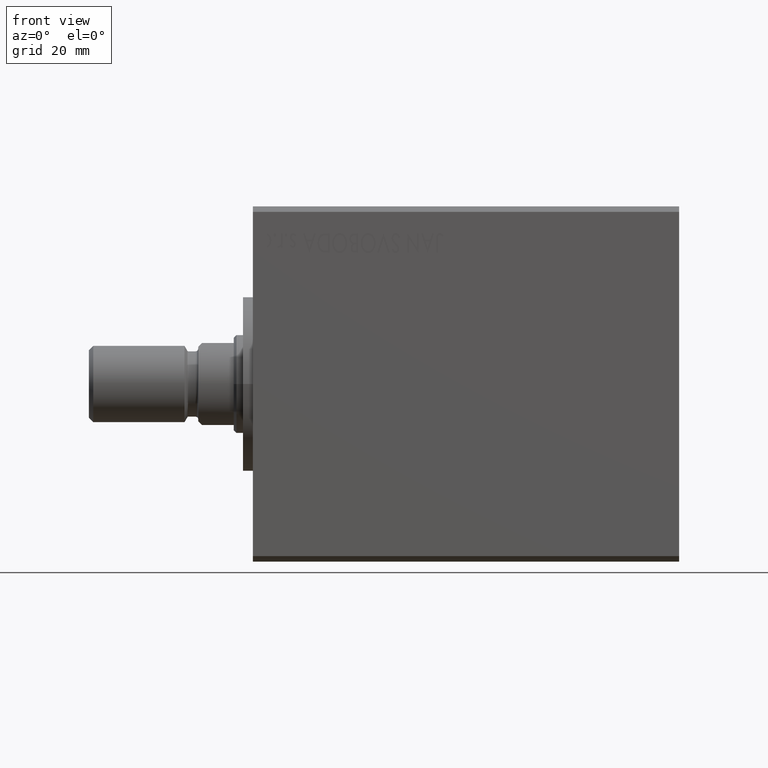
[diagram: clean part render]
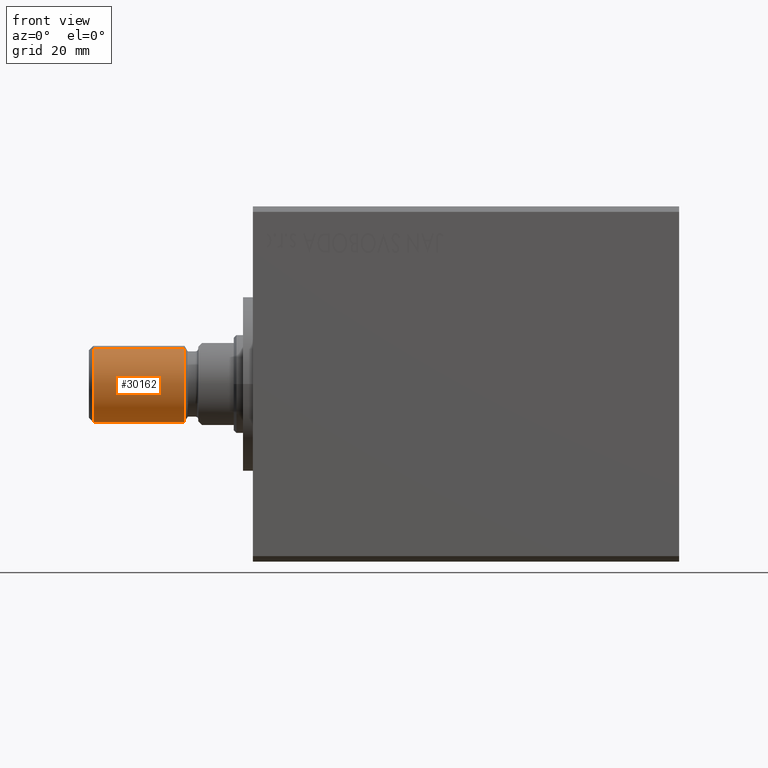
[diagram: same view with one face highlighted and labeled with its STEP entity id]
A machine part, front view. The second image highlights one B-rep face of the part: STEP entity #30162.
In plain terms, the highlighted cylindrical surface (partial cylindrical patch) has radius 7 mm, axis along (1, -0, 0).
Its self-contained STEP definition (entity closure, byte-faithful):
#1143 = CIRCLE ( 'NONE', #42014, 6.999999999999673150 ) ;
#1956 = VERTEX_POINT ( 'NONE', #5936 ) ;
#4484 = DIRECTION ( 'NONE',  ( -1.000000000000000000, 2.775557561562891967E-17, -0.000000000000000000 ) ) ;
#4740 = VECTOR ( 'NONE', #26408, 1000.000000000000000 ) ;
#5272 = ORIENTED_EDGE ( 'NONE', *, *, #40465, .T. ) ;
#5936 = CARTESIAN_POINT ( 'NONE',  ( 19.20000000000041851, -6.999999999999674039, 0.000000000000000000 ) ) ;
#6298 = LINE ( 'NONE', #24023, #7778 ) ;
#7622 = DIRECTION ( 'NONE',  ( 0.000000000000000000, -1.000000000000000000, 0.000000000000000000 ) ) ;
#7778 = VECTOR ( 'NONE', #33894, 1000.000000000000000 ) ;
#7856 = FACE_OUTER_BOUND ( 'NONE', #19982, .T. ) ;
#9277 = CARTESIAN_POINT ( 'NONE',  ( 2.500000000000419220, -6.999999999999685585, 8.572527594031086648E-16 ) ) ;
#11643 = CIRCLE ( 'NONE', #23089, 6.999999999999685585 ) ;
#12743 = CARTESIAN_POINT ( 'NONE',  ( 1.942890293093935445E-16, 6.999999999999679368, 8.572527594031079745E-16 ) ) ;
#13340 = VERTEX_POINT ( 'NONE', #9277 ) ;
#13775 = EDGE_CURVE ( 'NONE', #13340, #37566, #11643, .T. ) ;
#14367 = ORIENTED_EDGE ( 'NONE', *, *, #13775, .F. ) ;
#15781 = DIRECTION ( 'NONE',  ( -1.000000000000000000, 2.775557561562891967E-17, -0.000000000000000000 ) ) ;
#18087 = EDGE_CURVE ( 'NONE', #1956, #13340, #6298, .T. ) ;
#19374 = CARTESIAN_POINT ( 'NONE',  ( 19.20000000000041851, -5.329070518200868540E-16, 0.000000000000000000 ) ) ;
#19982 = EDGE_LOOP ( 'NONE', ( #5272, #33437, #14367, #44408 ) ) ;
#23089 = AXIS2_PLACEMENT_3D ( 'NONE', #24896, #41969, #7622 ) ;
#24023 = CARTESIAN_POINT ( 'NONE',  ( -1.942890293093935445E-16, -6.999999999999679368, 0.000000000000000000 ) ) ;
#24896 = CARTESIAN_POINT ( 'NONE',  ( 2.500000000000419220, -6.938893903908393180E-17, 0.000000000000000000 ) ) ;
#24908 = DIRECTION ( 'NONE',  ( -2.775557561562891967E-17, -1.000000000000000000, 0.000000000000000000 ) ) ;
#26408 = DIRECTION ( 'NONE',  ( -1.000000000000000000, 2.775557561562891967E-17, -0.000000000000000000 ) ) ;
#30162 = ADVANCED_FACE ( 'NONE', ( #7856 ), #38385, .T. ) ;
#32840 = CARTESIAN_POINT ( 'NONE',  ( 2.500000000000419220, 6.999999999999685585, 0.000000000000000000 ) ) ;
#33437 = ORIENTED_EDGE ( 'NONE', *, *, #33484, .T. ) ;
#33484 = EDGE_CURVE ( 'NONE', #33718, #37566, #43502, .T. ) ;
#33718 = VERTEX_POINT ( 'NONE', #42789 ) ;
#33894 = DIRECTION ( 'NONE',  ( -1.000000000000000000, 2.775557561562891967E-17, -0.000000000000000000 ) ) ;
#36211 = DIRECTION ( 'NONE',  ( 0.000000000000000000, -1.000000000000000000, 0.000000000000000000 ) ) ;
#37566 = VERTEX_POINT ( 'NONE', #32840 ) ;
#38385 = CYLINDRICAL_SURFACE ( 'NONE', #41986, 6.999999999999679368 ) ;
#40465 = EDGE_CURVE ( 'NONE', #1956, #33718, #1143, .T. ) ;
#41969 = DIRECTION ( 'NONE',  ( -1.000000000000000000, 2.775557561562891967E-17, -0.000000000000000000 ) ) ;
#41986 = AXIS2_PLACEMENT_3D ( 'NONE', #42432, #4484, #24908 ) ;
#42014 = AXIS2_PLACEMENT_3D ( 'NONE', #19374, #15781, #36211 ) ;
#42432 = CARTESIAN_POINT ( 'NONE',  ( 0.000000000000000000, 0.000000000000000000, 0.000000000000000000 ) ) ;
#42789 = CARTESIAN_POINT ( 'NONE',  ( 19.20000000000041851, 6.999999999999672262, 8.572527594031076787E-16 ) ) ;
#43502 = LINE ( 'NONE', #12743, #4740 ) ;
#44408 = ORIENTED_EDGE ( 'NONE', *, *, #18087, .F. ) ;